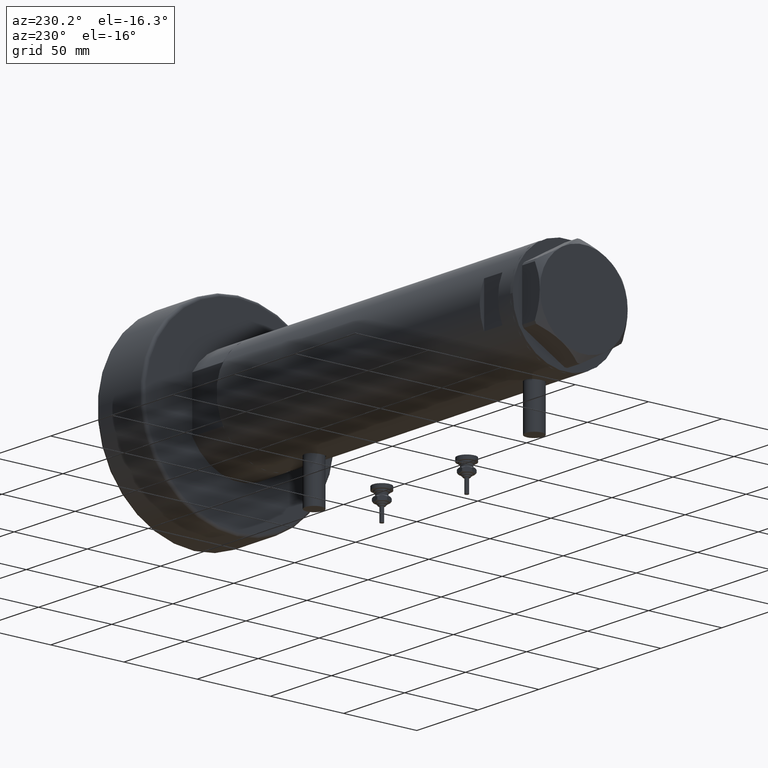
[diagram: clean part render]
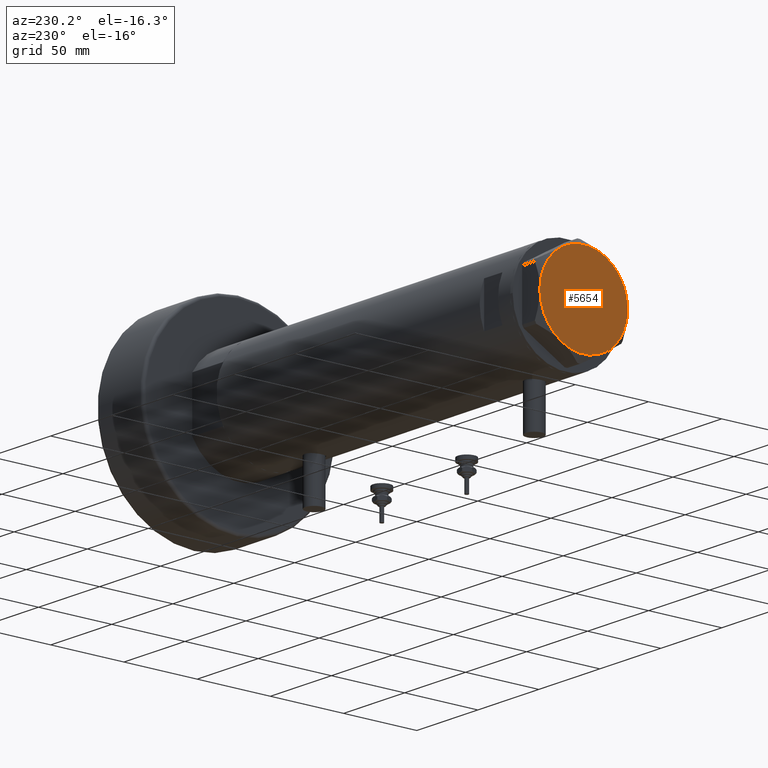
[diagram: same view with one face highlighted and labeled with its STEP entity id]
A machine part, auxiliary view. The second image highlights one B-rep face of the part: STEP entity #5654.
In plain terms, the highlighted planar face has unit normal (-1, -0, 0).
Its self-contained STEP definition (entity closure, byte-faithful):
#23 = ORIENTED_EDGE ( 'NONE', *, *, #5776, .T. ) ;
#117 = CARTESIAN_POINT ( 'NONE',  ( 0.000000000000000000, 0.000000000000000000, 14.50000000000000000 ) ) ;
#152 = DIRECTION ( 'NONE',  ( 1.000000000000000000, 0.000000000000000000, 0.000000000000000000 ) ) ;
#180 = CIRCLE ( 'NONE', #864, 30.00000000000000000 ) ;
#341 = AXIS2_PLACEMENT_3D ( 'NONE', #5013, #4922, #548 ) ;
#371 = CARTESIAN_POINT ( 'NONE',  ( 14.99999999999999467, 25.98076211353316367, 14.50000000000000000 ) ) ;
#548 = DIRECTION ( 'NONE',  ( 1.000000000000000000, 0.000000000000000000, 0.000000000000000000 ) ) ;
#555 = PLANE ( 'NONE',  #4357 ) ;
#706 = CARTESIAN_POINT ( 'NONE',  ( -14.99999999999999645, 25.98076211353316367, 14.50000000000000000 ) ) ;
#754 = CIRCLE ( 'NONE', #5146, 30.00000000000000000 ) ;
#864 = AXIS2_PLACEMENT_3D ( 'NONE', #2323, #1943, #5852 ) ;
#1058 = VERTEX_POINT ( 'NONE', #3213 ) ;
#1111 = CARTESIAN_POINT ( 'NONE',  ( 0.000000000000000000, 0.000000000000000000, 14.50000000000000000 ) ) ;
#1157 = DIRECTION ( 'NONE',  ( 1.000000000000000000, 0.000000000000000000, 0.000000000000000000 ) ) ;
#1197 = VERTEX_POINT ( 'NONE', #6313 ) ;
#1384 = EDGE_LOOP ( 'NONE', ( #2826, #23, #4124, #6233, #1648, #2843 ) ) ;
#1566 = CARTESIAN_POINT ( 'NONE',  ( -14.99999999999999645, -25.98076211353316367, 14.50000000000000000 ) ) ;
#1576 = CIRCLE ( 'NONE', #1775, 30.00000000000000000 ) ;
#1648 = ORIENTED_EDGE ( 'NONE', *, *, #4831, .T. ) ;
#1739 = VERTEX_POINT ( 'NONE', #371 ) ;
#1775 = AXIS2_PLACEMENT_3D ( 'NONE', #4300, #3390, #2842 ) ;
#1782 = AXIS2_PLACEMENT_3D ( 'NONE', #2987, #5974, #1157 ) ;
#1788 = AXIS2_PLACEMENT_3D ( 'NONE', #1111, #3074, #5012 ) ;
#1943 = DIRECTION ( 'NONE',  ( 0.000000000000000000, 0.000000000000000000, 1.000000000000000000 ) ) ;
#2059 = DIRECTION ( 'NONE',  ( 0.000000000000000000, 0.000000000000000000, 1.000000000000000000 ) ) ;
#2323 = CARTESIAN_POINT ( 'NONE',  ( 0.000000000000000000, 0.000000000000000000, 14.50000000000000000 ) ) ;
#2439 = VERTEX_POINT ( 'NONE', #706 ) ;
#2498 = CARTESIAN_POINT ( 'NONE',  ( 0.000000000000000000, 0.000000000000000000, 14.50000000000000000 ) ) ;
#2826 = ORIENTED_EDGE ( 'NONE', *, *, #4137, .T. ) ;
#2842 = DIRECTION ( 'NONE',  ( 1.000000000000000000, 0.000000000000000000, 0.000000000000000000 ) ) ;
#2843 = ORIENTED_EDGE ( 'NONE', *, *, #4644, .T. ) ;
#2863 = EDGE_CURVE ( 'NONE', #1739, #2439, #6070, .T. ) ;
#2987 = CARTESIAN_POINT ( 'NONE',  ( 0.000000000000000000, 0.000000000000000000, 14.50000000000000000 ) ) ;
#3015 = VERTEX_POINT ( 'NONE', #1566 ) ;
#3074 = DIRECTION ( 'NONE',  ( 0.000000000000000000, 0.000000000000000000, 1.000000000000000000 ) ) ;
#3213 = CARTESIAN_POINT ( 'NONE',  ( 14.99999999999998757, -25.98076211353316722, 14.50000000000000000 ) ) ;
#3390 = DIRECTION ( 'NONE',  ( 0.000000000000000000, 0.000000000000000000, 1.000000000000000000 ) ) ;
#3803 = EDGE_CURVE ( 'NONE', #2439, #1197, #754, .T. ) ;
#3913 = FACE_OUTER_BOUND ( 'NONE', #1384, .T. ) ;
#3945 = CIRCLE ( 'NONE', #1788, 30.00000000000000000 ) ;
#4124 = ORIENTED_EDGE ( 'NONE', *, *, #2863, .T. ) ;
#4137 = EDGE_CURVE ( 'NONE', #1058, #6283, #1576, .T. ) ;
#4300 = CARTESIAN_POINT ( 'NONE',  ( 0.000000000000000000, 0.000000000000000000, 14.50000000000000000 ) ) ;
#4357 = AXIS2_PLACEMENT_3D ( 'NONE', #2498, #5383, #4834 ) ;
#4644 = EDGE_CURVE ( 'NONE', #3015, #1058, #4951, .T. ) ;
#4831 = EDGE_CURVE ( 'NONE', #1197, #3015, #3945, .T. ) ;
#4834 = DIRECTION ( 'NONE',  ( 1.000000000000000000, 0.000000000000000000, -0.000000000000000000 ) ) ;
#4922 = DIRECTION ( 'NONE',  ( 0.000000000000000000, 0.000000000000000000, 1.000000000000000000 ) ) ;
#4951 = CIRCLE ( 'NONE', #1782, 30.00000000000000000 ) ;
#5012 = DIRECTION ( 'NONE',  ( 1.000000000000000000, 0.000000000000000000, 0.000000000000000000 ) ) ;
#5013 = CARTESIAN_POINT ( 'NONE',  ( 0.000000000000000000, 0.000000000000000000, 14.50000000000000000 ) ) ;
#5146 = AXIS2_PLACEMENT_3D ( 'NONE', #117, #2059, #152 ) ;
#5318 = CARTESIAN_POINT ( 'NONE',  ( 30.00000000000000000, 9.013887592422954582E-15, 14.50000000000000000 ) ) ;
#5383 = DIRECTION ( 'NONE',  ( 0.000000000000000000, 0.000000000000000000, 1.000000000000000000 ) ) ;
#5654 = ADVANCED_FACE ( 'NONE', ( #3913 ), #555, .T. ) ;
#5776 = EDGE_CURVE ( 'NONE', #6283, #1739, #180, .T. ) ;
#5852 = DIRECTION ( 'NONE',  ( 1.000000000000000000, 0.000000000000000000, 0.000000000000000000 ) ) ;
#5974 = DIRECTION ( 'NONE',  ( 0.000000000000000000, 0.000000000000000000, 1.000000000000000000 ) ) ;
#6070 = CIRCLE ( 'NONE', #341, 30.00000000000000000 ) ;
#6233 = ORIENTED_EDGE ( 'NONE', *, *, #3803, .T. ) ;
#6283 = VERTEX_POINT ( 'NONE', #5318 ) ;
#6313 = CARTESIAN_POINT ( 'NONE',  ( -30.00000000000000000, 0.000000000000000000, 14.50000000000000000 ) ) ;